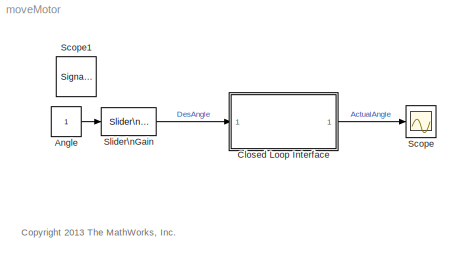
MODEL moveMotor
KIND model
BLOCK [Constant] Angle
  SID = 2
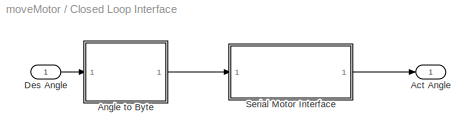
BLOCK [SubSystem] Closed Loop Interface
  FunctionWithSeparateData = off
  MaskHideContents = off
  MinAlgLoopOccurrences = off
  Opaque = off
  Ports = [1, 1]
  PropExecContextOutsideSubsystem = off
  RTWSystemCode = Auto
  RequestExecContextInheritance = off
  SID = 12
BLOCK [Outport] Closed Loop Interface/Act Angle
  IconDisplay = Port number
  SID = 23
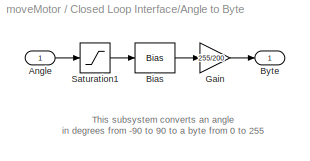
BLOCK [SubSystem] Closed Loop Interface/Angle to Byte
  FunctionWithSeparateData = off
  MaskHideContents = off
  MinAlgLoopOccurrences = off
  Opaque = off
  Ports = [1, 1]
  PropExecContextOutsideSubsystem = off
  RTWSystemCode = Auto
  RequestExecContextInheritance = off
  SID = 14
BLOCK [Inport] Closed Loop Interface/Angle to Byte/Angle
  IconDisplay = Port number
  SID = 15
BLOCK [Bias] Closed Loop Interface/Angle to Byte/Bias
  Bias = 100
  SID = 16
  SaturateOnIntegerOverflow = off
BLOCK [Outport] Closed Loop Interface/Angle to Byte/Byte
  IconDisplay = Port number
  SID = 19
BLOCK [Gain] Closed Loop Interface/Angle to Byte/Gain
  Gain = 255/200
  OutDataTypeStr = uint8
  ParamDataTypeStr = Inherit: Inherit via internal rule
  SID = 17
  SaturateOnIntegerOverflow = off
BLOCK [Saturate] Closed Loop Interface/Angle to Byte/Saturation1
  InputPortMap = u0
  LowerLimit = -100
  Ports = [1, 1]
  SID = 18
  UpperLimit = 100
BLOCK [Inport] Closed Loop Interface/Des Angle
  IconDisplay = Port number
  SID = 13
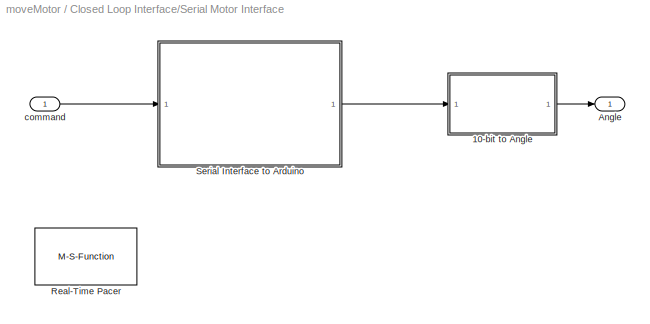
BLOCK [SubSystem] Closed Loop Interface/Serial Motor Interface
  FunctionWithSeparateData = off
  MaskHideContents = off
  MinAlgLoopOccurrences = off
  Opaque = off
  Ports = [1, 1]
  PropExecContextOutsideSubsystem = off
  RTWSystemCode = Auto
  RequestExecContextInheritance = off
  SID = 24
  StartFcn = openInstr = instrfind;                           \nif ~isempty(openInstr)                           \n  fclose(openInstr);                             \n  delete(openInstr);                             \nend                                              \nclear openInstr                                  \ns = serial('COM4', 'BaudRate', 9600,'Timeout',5);\nfopen(s);
  StopFcn = fclose(s);\ndelete(s);\nclear s
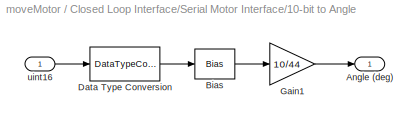
BLOCK [SubSystem] Closed Loop Interface/Serial Motor Interface/10-bit to Angle
  FunctionWithSeparateData = off
  MaskHideContents = off
  MinAlgLoopOccurrences = off
  Opaque = off
  Ports = [1, 1]
  PropExecContextOutsideSubsystem = off
  RTWSystemCode = Auto
  RequestExecContextInheritance = off
  SID = 26
BLOCK [Outport] Closed Loop Interface/Serial Motor Interface/10-bit to Angle/Angle (deg)
  IconDisplay = Port number
  SID = 31
BLOCK [Bias] Closed Loop Interface/Serial Motor Interface/10-bit to Angle/Bias
  Bias = -500
  SID = 28
  SaturateOnIntegerOverflow = off
BLOCK [DataTypeConversion] Closed Loop Interface/Serial Motor Interface/10-bit to Angle/Data Type Conversion
  OutDataTypeStr = double
  RndMeth = Floor
  SID = 29
  SaturateOnIntegerOverflow = off
BLOCK [Gain] Closed Loop Interface/Serial Motor Interface/10-bit to Angle/Gain1
  Gain = 10/44
  OutDataTypeStr = Inherit: Inherit via internal rule
  ParamDataTypeStr = Inherit: Inherit via internal rule
  SID = 30
  SaturateOnIntegerOverflow = off
BLOCK [Inport] Closed Loop Interface/Serial Motor Interface/10-bit to Angle/uint16
  IconDisplay = Port number
  SID = 27
BLOCK [Outport] Closed Loop Interface/Serial Motor Interface/Angle
  IconDisplay = Port number
  SID = 34
BLOCK [M-S-Function] Closed Loop Interface/Serial Motor Interface/Real-Time Pacer
  FunctionName = msfun_realtime_pacer
  Parameters = simTimePerRealTime
  Ports = []
  SID = 32
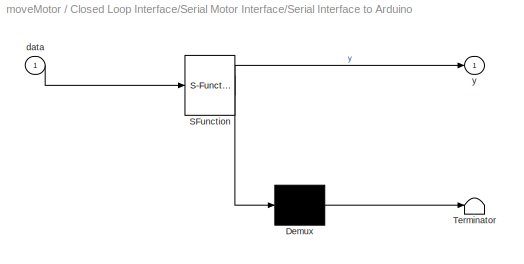
BLOCK [SubSystem] Closed Loop Interface/Serial Motor Interface/Serial Interface to Arduino
  ErrorFcn = Stateflow.Translate.translate
  FunctionWithSeparateData = off
  MaskHideContents = off
  MinAlgLoopOccurrences = off
  Opaque = off
  PermitHierarchicalResolution = ExplicitOnly
  Ports = [1, 1]
  PropExecContextOutsideSubsystem = off
  RTWSystemCode = Auto
  RequestExecContextInheritance = off
  SFBlockType = MATLAB Function
  SID = 33
  SystemSampleTime = 1/100
  TreatAsAtomicUnit = on
BLOCK [Demux] Closed Loop Interface/Serial Motor Interface/Serial Interface to Arduino/ Demux 
  Outputs = 1
  Ports = [1, 1]
  SID = 33::40
BLOCK [S-Function] Closed Loop Interface/Serial Motor Interface/Serial Interface to Arduino/ SFunction 
  EnableBusSupport = off
  FunctionName = sf_sfun
  PortCounts = [1 2]
  Ports = [1, 2]
  SID = 33::39
  Tag = Stateflow S-Function moveMotor 2
BLOCK [Terminator] Closed Loop Interface/Serial Motor Interface/Serial Interface to Arduino/ Terminator 
  SID = 33::41
BLOCK [Inport] Closed Loop Interface/Serial Motor Interface/Serial Interface to Arduino/data
  IconDisplay = Port number
  SID = 33::1
BLOCK [Outport] Closed Loop Interface/Serial Motor Interface/Serial Interface to Arduino/y
  IconDisplay = Port number
  SID = 33::5
BLOCK [Inport] Closed Loop Interface/Serial Motor Interface/command
  IconDisplay = Port number
  OutDataTypeStr = uint8
  SID = 25
  SampleTime = 0.01
BLOCK [Scope] Scope
  DataFormat = StructureWithTime
  Floating = off
  NumInputPorts = 1
  Ports = [1]
  SID = 6
  SampleTime = 0
  ShowLegends = off
BLOCK [SignalViewerScope] Scope1
  IOType = viewer
  MaxDataPoints = 7500
  NumInputPorts = 1
  Ports = []
  RefreshTime = 0.035000
  SID = 7
  ShowDataMarkers = off
  ShowLegends = off
  TimeRange = 30
  YMax = 100
  YMin = -100
BLOCK [Reference] Slider\nGain  REF=simulink/Math\nOperations/Slider\nGain
  Ports = [1, 1]
  SID = 3
  SourceBlock = simulink/Math\nOperations/Slider\nGain
  SourceType = Slider Gain
  gain = 100
  high = 100
  low = -100
ANNOTATION (root): <copyright redacted>\n
ANNOTATION Closed Loop Interface/Angle to Byte: This subsystem converts an angle\n in degrees from -90 to 90 to a byte from 0 to 255
LINE Angle:1 -> Slider\nGain:1
LINE Closed Loop Interface/Angle to Byte/Angle:1 -> Closed Loop Interface/Angle to Byte/Saturation1:1
LINE Closed Loop Interface/Angle to Byte/Bias:1 -> Closed Loop Interface/Angle to Byte/Gain:1
LINE Closed Loop Interface/Angle to Byte/Gain:1 -> Closed Loop Interface/Angle to Byte/Byte:1
LINE Closed Loop Interface/Angle to Byte/Saturation1:1 -> Closed Loop Interface/Angle to Byte/Bias:1
LINE Closed Loop Interface/Angle to Byte:1 -> Closed Loop Interface/Serial Motor Interface:1
LINE Closed Loop Interface/Des Angle:1 -> Closed Loop Interface/Angle to Byte:1
LINE Closed Loop Interface/Serial Motor Interface/10-bit to Angle/Bias:1 -> Closed Loop Interface/Serial Motor Interface/10-bit to Angle/Gain1:1
LINE Closed Loop Interface/Serial Motor Interface/10-bit to Angle/Data Type Conversion:1 -> Closed Loop Interface/Serial Motor Interface/10-bit to Angle/Bias:1
LINE Closed Loop Interface/Serial Motor Interface/10-bit to Angle/Gain1:1 -> Closed Loop Interface/Serial Motor Interface/10-bit to Angle/Angle (deg):1
LINE Closed Loop Interface/Serial Motor Interface/10-bit to Angle/uint16:1 -> Closed Loop Interface/Serial Motor Interface/10-bit to Angle/Data Type Conversion:1
LINE Closed Loop Interface/Serial Motor Interface/10-bit to Angle:1 -> Closed Loop Interface/Serial Motor Interface/Angle:1
LINE Closed Loop Interface/Serial Motor Interface/Serial Interface to Arduino/ Demux :1 -> Closed Loop Interface/Serial Motor Interface/Serial Interface to Arduino/ Terminator :1
LINE Closed Loop Interface/Serial Motor Interface/Serial Interface to Arduino/ SFunction :1 -> Closed Loop Interface/Serial Motor Interface/Serial Interface to Arduino/ Demux :1
LINE Closed Loop Interface/Serial Motor Interface/Serial Interface to Arduino/ SFunction :2 -> Closed Loop Interface/Serial Motor Interface/Serial Interface to Arduino/y:1
LINE Closed Loop Interface/Serial Motor Interface/Serial Interface to Arduino/data:1 -> Closed Loop Interface/Serial Motor Interface/Serial Interface to Arduino/ SFunction :1
LINE Closed Loop Interface/Serial Motor Interface/Serial Interface to Arduino:1 -> Closed Loop Interface/Serial Motor Interface/10-bit to Angle:1
LINE Closed Loop Interface/Serial Motor Interface/command:1 -> Closed Loop Interface/Serial Motor Interface/Serial Interface to Arduino:1
LINE Closed Loop Interface/Serial Motor Interface:1 -> Closed Loop Interface/Act Angle:1
LINE Closed Loop Interface:1 -> Scope:1
LINE Slider\nGain:1 -> Closed Loop Interface:1
CHART Closed Loop Interface/Serial Motor Interface/Serial Interface to Arduino states=1 transitions=1
  STATE_LABEL 'eML_blk_kernel()'
